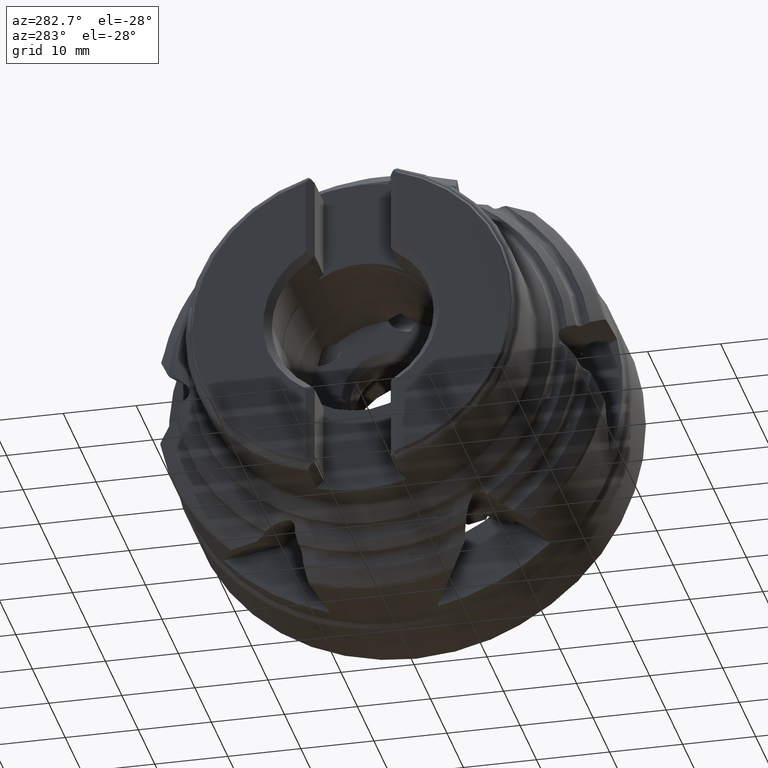
[diagram: clean part render]
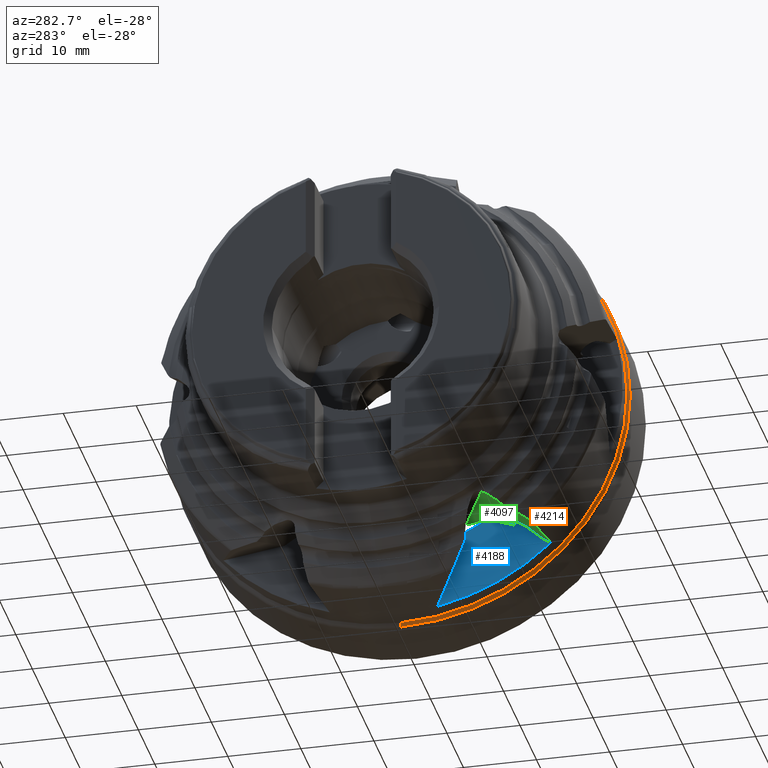
[diagram: same view with three faces highlighted in distinct colors, each labeled with its STEP entity id]
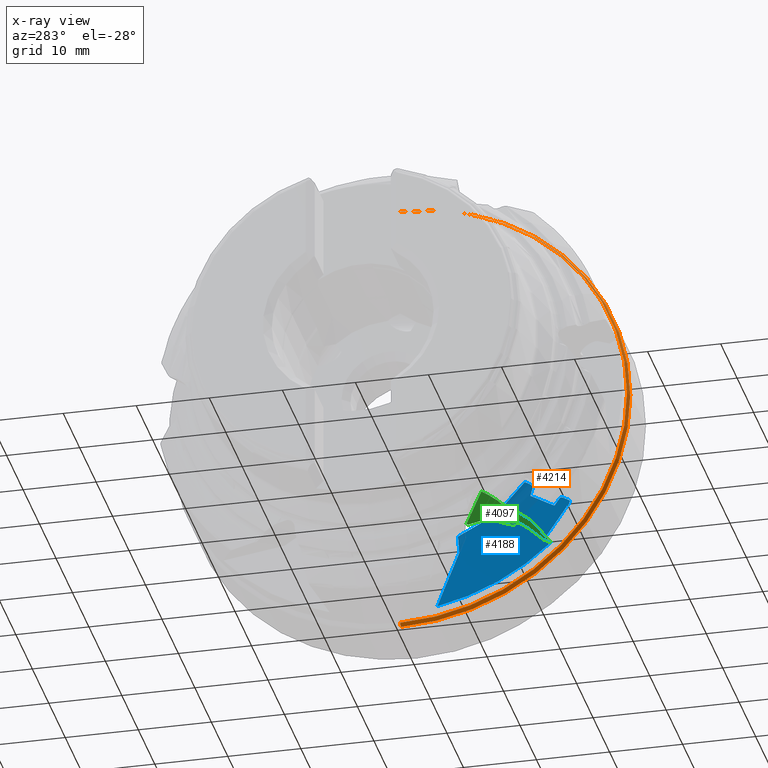
[diagram: x-ray of the same camera — body ghosted, the three highlighted faces saturated]
A machine part, auxiliary view with three faces highlighted in distinct colors.
The next image is the same camera in x-ray (body ghosted, the three faces saturated) — at least one of them is partly hidden behind the body in this view.
Their STEP definitions:

[orange] entity #4214 — the highlighted conical surface has half-angle 25.184 deg.
#141 = EDGE_CURVE ( 'NONE', #3351, #4012, #2933, .T. ) ;
#2302 = EDGE_LOOP ( 'NONE', ( #2568, #2569, #2570, #2571 ) ) ;
#2568 = ORIENTED_EDGE ( 'NONE', *, *, #8006, .F. ) ;
#2569 = ORIENTED_EDGE ( 'NONE', *, *, #6484, .T. ) ;
#2570 = ORIENTED_EDGE ( 'NONE', *, *, #8016, .T. ) ;
#2571 = ORIENTED_EDGE ( 'NONE', *, *, #141, .F. ) ;
#2933 = CIRCLE ( 'NONE', #7233, 31.37604880235647500 ) ;
#3318 = VERTEX_POINT ( 'NONE', #11670 ) ;
#3351 = VERTEX_POINT ( 'NONE', #11703 ) ;
#4012 = VERTEX_POINT ( 'NONE', #5379 ) ;
#4214 = ADVANCED_FACE ( 'NONE', ( #6132 ), #6131, .T. ) ;
#4224 = VERTEX_POINT ( 'NONE', #5761 ) ;
#5379 = CARTESIAN_POINT ( 'NONE',  ( -7.889555473977110500, 0.0000000000000000000, -31.37604880235647500 ) ) ;
#5743 = DIRECTION ( 'NONE',  ( 0.0000000000000000000, 0.0000000000000000000, -1.000000000000000000 ) ) ;
#5744 = DIRECTION ( 'NONE',  ( 1.000000000000000000, -0.0000000000000000000, -0.0000000000000000000 ) ) ;
#5745 = CARTESIAN_POINT ( 'NONE',  ( -7.889555473977110500, 0.0000000000000000000, 0.0000000000000000000 ) ) ;
#5761 = CARTESIAN_POINT ( 'NONE',  ( -8.529779502917302000, 3.805589928350399100E-015, 31.07499999999999600 ) ) ;
#6131 = CONICAL_SURFACE ( 'NONE', #7473, 31.37604880235647500, 0.4395444687587208300 ) ;
#6132 = FACE_OUTER_BOUND ( 'NONE', #2302, .T. ) ;
#6484 = EDGE_CURVE ( 'NONE', #4224, #3318, #6510, .T. ) ;
#6510 = CIRCLE ( 'NONE', #7660, 31.07499999999999600 ) ;
#7233 = AXIS2_PLACEMENT_3D ( 'NONE', #10598, #10611, #10613 ) ;
#7473 = AXIS2_PLACEMENT_3D ( 'NONE', #5745, #5744, #5743 ) ;
#7660 = AXIS2_PLACEMENT_3D ( 'NONE', #8857, #8859, #8860 ) ;
#8006 = EDGE_CURVE ( 'NONE', #4224, #3351, #13049, .T. ) ;
#8016 = EDGE_CURVE ( 'NONE', #3318, #4012, #13060, .T. ) ;
#8857 = CARTESIAN_POINT ( 'NONE',  ( -8.529779502917302000, 0.0000000000000000000, 0.0000000000000000000 ) ) ;
#8859 = DIRECTION ( 'NONE',  ( 1.000000000000000000, -0.0000000000000000000, -0.0000000000000000000 ) ) ;
#8860 = DIRECTION ( 'NONE',  ( 0.0000000000000000000, 0.0000000000000000000, -1.000000000000000000 ) ) ;
#10598 = CARTESIAN_POINT ( 'NONE',  ( -7.889555473977110500, 0.0000000000000000000, 0.0000000000000000000 ) ) ;
#10611 = DIRECTION ( 'NONE',  ( 1.000000000000000000, -0.0000000000000000000, -0.0000000000000000000 ) ) ;
#10613 = DIRECTION ( 'NONE',  ( 0.0000000000000000000, 0.0000000000000000000, -1.000000000000000000 ) ) ;
#11670 = CARTESIAN_POINT ( 'NONE',  ( -8.529779502917302000, 0.0000000000000000000, -31.07499999999999600 ) ) ;
#11703 = CARTESIAN_POINT ( 'NONE',  ( -7.889555473977110500, 3.842457773569700600E-015, 31.37604880235647500 ) ) ;
#12600 = CARTESIAN_POINT ( 'NONE',  ( -7.889555473977110500, 3.842457773569700600E-015, 31.37604880235647500 ) ) ;
#12601 = DIRECTION ( 'NONE',  ( 0.9049455980745598800, 5.211206192452562100E-017, 0.4255272782389834000 ) ) ;
#12638 = CARTESIAN_POINT ( 'NONE',  ( -7.889555473977110500, 0.0000000000000000000, -31.37604880235647500 ) ) ;
#12639 = DIRECTION ( 'NONE',  ( 0.9049455980745598800, 0.0000000000000000000, -0.4255272782389834000 ) ) ;
#13047 = VECTOR ( 'NONE', #12601, 1000.000000000000000 ) ;
#13049 = LINE ( 'NONE', #12600, #13047 ) ;
#13054 = VECTOR ( 'NONE', #12639, 1000.000000000000000 ) ;
#13060 = LINE ( 'NONE', #12638, #13054 ) ;

[blue] entity #4188 — the highlighted conical surface has half-angle 87.403 deg.
#94 = EDGE_CURVE ( 'NONE', #3928, #1272, #7702, .T. ) ;
#95 = EDGE_CURVE ( 'NONE', #1159, #4006, #7541, .T. ) ;
#96 = EDGE_CURVE ( 'NONE', #1311, #3940, #7559, .T. ) ;
#136 = EDGE_CURVE ( 'NONE', #1572, #3341, #3405, .T. ) ;
#1159 = VERTEX_POINT ( 'NONE', #11230 ) ;
#1272 = VERTEX_POINT ( 'NONE', #11370 ) ;
#1311 = VERTEX_POINT ( 'NONE', #11410 ) ;
#1572 = VERTEX_POINT ( 'NONE', #11450 ) ;
#1598 = VERTEX_POINT ( 'NONE', #11476 ) ;
#1845 = VERTEX_POINT ( 'NONE', #11509 ) ;
#1850 = VERTEX_POINT ( 'NONE', #11512 ) ;
#1852 = VERTEX_POINT ( 'NONE', #11514 ) ;
#1875 = VERTEX_POINT ( 'NONE', #11537 ) ;
#1881 = VERTEX_POINT ( 'NONE', #11543 ) ;
#1887 = VERTEX_POINT ( 'NONE', #11549 ) ;
#2284 = EDGE_LOOP ( 'NONE', ( #2402, #2403, #2404, #2405, #2406, #2407, #2408, #2409, #2410, #2411, #2412, #2413, #2414, #2415 ) ) ;
#2356 = EDGE_LOOP ( 'NONE', ( #2416, #2417, #2418 ) ) ;
#2402 = ORIENTED_EDGE ( 'NONE', *, *, #6397, .F. ) ;
#2403 = ORIENTED_EDGE ( 'NONE', *, *, #6806, .T. ) ;
#2404 = ORIENTED_EDGE ( 'NONE', *, *, #95, .F. ) ;
#2405 = ORIENTED_EDGE ( 'NONE', *, *, #7744, .T. ) ;
#2406 = ORIENTED_EDGE ( 'NONE', *, *, #94, .F. ) ;
#2407 = ORIENTED_EDGE ( 'NONE', *, *, #6913, .F. ) ;
#2408 = ORIENTED_EDGE ( 'NONE', *, *, #3742, .F. ) ;
#2409 = ORIENTED_EDGE ( 'NONE', *, *, #7746, .F. ) ;
#2410 = ORIENTED_EDGE ( 'NONE', *, *, #96, .F. ) ;
#2411 = ORIENTED_EDGE ( 'NONE', *, *, #7752, .T. ) ;
#2412 = ORIENTED_EDGE ( 'NONE', *, *, #7986, .T. ) ;
#2413 = ORIENTED_EDGE ( 'NONE', *, *, #136, .F. ) ;
#2414 = ORIENTED_EDGE ( 'NONE', *, *, #3727, .F. ) ;
#2415 = ORIENTED_EDGE ( 'NONE', *, *, #6477, .F. ) ;
#2416 = ORIENTED_EDGE ( 'NONE', *, *, #6392, .F. ) ;
#2417 = ORIENTED_EDGE ( 'NONE', *, *, #6794, .T. ) ;
#2418 = ORIENTED_EDGE ( 'NONE', *, *, #6815, .T. ) ;
#3224 = VERTEX_POINT ( 'NONE', #11576 ) ;
#3341 = VERTEX_POINT ( 'NONE', #11693 ) ;
#3405 = B_SPLINE_CURVE_WITH_KNOTS ( 'NONE', 3,
 ( #10577, #10584, #10586, #10588 ),
 .UNSPECIFIED., .F., .F.,
 ( 4, 4 ),
 ( 0.0000000000000000000, 0.002538169568664505500 ),
 .UNSPECIFIED. ) ;
#3466 = B_SPLINE_CURVE_WITH_KNOTS ( 'NONE', 3,
 ( #4915, #4917, #4918, #4919 ),
 .UNSPECIFIED., .F., .F.,
 ( 4, 4 ),
 ( 3.355557552788343800E-007, 0.008436232804282222500 ),
 .UNSPECIFIED. ) ;
#3471 = B_SPLINE_CURVE_WITH_KNOTS ( 'NONE', 3,
 ( #4957, #4960, #4961, #4962 ),
 .UNSPECIFIED., .F., .F.,
 ( 4, 4 ),
 ( 0.002025057353782216000, 0.005899572719423518700 ),
 .UNSPECIFIED. ) ;
#3727 = EDGE_CURVE ( 'NONE', #1845, #1572, #3466, .T. ) ;
#3742 = EDGE_CURVE ( 'NONE', #1875, #1881, #3471, .T. ) ;
#3856 = CARTESIAN_POINT ( 'NONE',  ( -10.88067626863887000, -22.34921932939456100, -16.10639613521508200 ) ) ;
#3928 = VERTEX_POINT ( 'NONE', #5321 ) ;
#3940 = VERTEX_POINT ( 'NONE', #5330 ) ;
#3960 = VERTEX_POINT ( 'NONE', #5346 ) ;
#4006 = VERTEX_POINT ( 'NONE', #5375 ) ;
#4025 = CARTESIAN_POINT ( 'NONE',  ( -10.94248528970887700, -23.70558305143109500, -16.54970909000637700 ) ) ;
#4126 = CARTESIAN_POINT ( 'NONE',  ( -10.94627032115090500, -23.76089875513012500, -16.61632566230232700 ) ) ;
#4144 = CARTESIAN_POINT ( 'NONE',  ( -10.95374089691669900, -23.79189454837388600, -16.85856547152785700 ) ) ;
#4163 = CARTESIAN_POINT ( 'NONE',  ( -10.68333498048717800, -18.64427529788395800, -13.80196755632228400 ) ) ;
#4188 = ADVANCED_FACE ( 'NONE', ( #6095, #6099 ), #6097, .F. ) ;
#4220 = CARTESIAN_POINT ( 'NONE',  ( -10.67769252315758900, -18.58297519318584200, -13.67553947286073200 ) ) ;
#4222 = CARTESIAN_POINT ( 'NONE',  ( -10.68196710265561600, -18.63094964838861500, -13.76925547884565800 ) ) ;
#4302 = CARTESIAN_POINT ( 'NONE',  ( -10.68578059649651200, -18.66024257039192900, -13.87095101293835400 ) ) ;
#4306 = CARTESIAN_POINT ( 'NONE',  ( -10.68685199214229300, -18.66273929978165900, -13.90718259150854600 ) ) ;
#4308 = CARTESIAN_POINT ( 'NONE',  ( -10.68745284611254800, -18.65368788609024300, -13.94142326658457000 ) ) ;
#4348 = CARTESIAN_POINT ( 'NONE',  ( -10.88054221163580900, -22.39559977107441600, -16.03698309103827300 ) ) ;
#4353 = CARTESIAN_POINT ( 'NONE',  ( -10.89114716224721000, -22.72567783115575000, -15.97562926365243500 ) ) ;
#4355 = CARTESIAN_POINT ( 'NONE',  ( -10.95193517013624400, -23.80526740166199000, -16.77052401634568600 ) ) ;
#4364 = CARTESIAN_POINT ( 'NONE',  ( -10.65903085845365300, -18.29114767477627600, -13.37768365207766400 ) ) ;
#4366 = CARTESIAN_POINT ( 'NONE',  ( -10.66543581823864900, -18.40224845016062000, -13.46502248549970400 ) ) ;
#4372 = CARTESIAN_POINT ( 'NONE',  ( -10.67462293755741100, -18.54045969031343000, -13.61908014962794200 ) ) ;
#4392 = CARTESIAN_POINT ( 'NONE',  ( -10.95385127776100600, -23.74723627261584000, -16.92541662280418900 ) ) ;
#4471 = CARTESIAN_POINT ( 'NONE',  ( -10.65277783110281200, -18.17156262529774900, -13.30762643417526000 ) ) ;
#4504 = CARTESIAN_POINT ( 'NONE',  ( -10.93885411875874200, -23.63628164341410800, -16.50910862765142900 ) ) ;
#4513 = CARTESIAN_POINT ( 'NONE',  ( -10.88216538222505700, -22.47315741442972800, -15.98982378516779500 ) ) ;
#4539 = CARTESIAN_POINT ( 'NONE',  ( -10.89490906650229500, -22.79749059893999100, -16.01770087597497700 ) ) ;
#4541 = CARTESIAN_POINT ( 'NONE',  ( -10.88748639069299200, -22.63816047818079000, -15.95983947619594400 ) ) ;
#4915 = CARTESIAN_POINT ( 'NONE',  ( -11.04062944478619600, -5.684444302778842900, -30.55065822480106500 ) ) ;
#4917 = CARTESIAN_POINT ( 'NONE',  ( -10.93112514378349300, -6.655774829584231600, -27.91403547299314500 ) ) ;
#4918 = CARTESIAN_POINT ( 'NONE',  ( -10.82584073566400400, -7.628806464875773400, -25.27788169789563700 ) ) ;
#4919 = CARTESIAN_POINT ( 'NONE',  ( -10.72986325296337500, -8.605589875448867300, -22.64276224556124000 ) ) ;
#4957 = CARTESIAN_POINT ( 'NONE',  ( -10.71022056121349500, -18.33402386993919800, -15.15981809428878600 ) ) ;
#4960 = CARTESIAN_POINT ( 'NONE',  ( -10.76797953451900000, -19.44730017377376500, -15.81194174305159600 ) ) ;
#4961 = CARTESIAN_POINT ( 'NONE',  ( -10.82585841075317000, -20.56056331327362600, -16.46407724953852600 ) ) ;
#4962 = CARTESIAN_POINT ( 'NONE',  ( -10.88381336914486900, -21.67381808353259800, -17.11622027085060100 ) ) ;
#5321 = CARTESIAN_POINT ( 'NONE',  ( -10.88067626863887000, -22.34921932939456100, -16.10639613521508200 ) ) ;
#5330 = CARTESIAN_POINT ( 'NONE',  ( -10.68745284611254800, -18.65368788609024300, -13.94142326658457000 ) ) ;
#5346 = CARTESIAN_POINT ( 'NONE',  ( -10.63776808860337700, -14.74375655347073900, -16.58679219002493700 ) ) ;
#5375 = CARTESIAN_POINT ( 'NONE',  ( -10.95385127776100600, -23.74723627261584000, -16.92541662280418900 ) ) ;
#5692 = CARTESIAN_POINT ( 'NONE',  ( -11.04062944478619600, 0.0000000000000000000, 0.0000000000000000000 ) ) ;
#5693 = DIRECTION ( 'NONE',  ( 0.0000000000000000000, 0.0000000000000000000, 1.000000000000000000 ) ) ;
#5694 = DIRECTION ( 'NONE',  ( -1.000000000000000000, 0.0000000000000000000, 0.0000000000000000000 ) ) ;
#6095 = FACE_OUTER_BOUND ( 'NONE', #2284, .T. ) ;
#6097 = CONICAL_SURFACE ( 'NONE', #7457, 31.07499999999999600, 1.525473692231814800 ) ;
#6099 = FACE_BOUND ( 'NONE', #2356, .T. ) ;
#6392 = EDGE_CURVE ( 'NONE', #1598, #1852, #8037, .T. ) ;
#6397 = EDGE_CURVE ( 'NONE', #1850, #1887, #8038, .T. ) ;
#6477 = EDGE_CURVE ( 'NONE', #1887, #1845, #6505, .T. ) ;
#6505 = CIRCLE ( 'NONE', #7653, 31.07499999999999600 ) ;
#6794 = EDGE_CURVE ( 'NONE', #1598, #3960, #8113, .T. ) ;
#6806 = EDGE_CURVE ( 'NONE', #1850, #4006, #8116, .T. ) ;
#6815 = EDGE_CURVE ( 'NONE', #3960, #1852, #8117, .T. ) ;
#6913 = EDGE_CURVE ( 'NONE', #1881, #3928, #8138, .T. ) ;
#7272 = CIRCLE ( 'NONE', #9489, 21.79979993145168000 ) ;
#7457 = AXIS2_PLACEMENT_3D ( 'NONE', #5692, #5694, #5693 ) ;
#7541 = B_SPLINE_CURVE_WITH_KNOTS ( 'NONE', 3,
 ( #4504, #4025, #4126, #4355, #4144, #4392 ),
 .UNSPECIFIED., .F., .F.,
 ( 4, 2, 4 ),
 ( 0.001512621793305964800, 0.001753318965563262200, 0.001994016137820559600 ),
 .UNSPECIFIED. ) ;
#7559 = B_SPLINE_CURVE_WITH_KNOTS ( 'NONE', 3,
 ( #4471, #4364, #4366, #4372, #4220, #4222, #4163, #4302, #4306, #4308 ),
 .UNSPECIFIED., .F., .F.,
 ( 4, 2, 2, 2, 4 ),
 ( 0.002192323967721373900, 0.002611683681384844400, 0.002821363538216574100, 0.002926203466632438900, 0.003031043395048303700 ),
 .UNSPECIFIED. ) ;
#7653 = AXIS2_PLACEMENT_3D ( 'NONE', #8839, #8841, #8842 ) ;
#7702 = B_SPLINE_CURVE_WITH_KNOTS ( 'NONE', 3,
 ( #3856, #4348, #4513, #4541, #4353, #4539 ),
 .UNSPECIFIED., .F., .F.,
 ( 4, 2, 4 ),
 ( 0.0009279824236362253200, 0.001177611161292674800, 0.001427239898949124400 ),
 .UNSPECIFIED. ) ;
#7744 = EDGE_CURVE ( 'NONE', #1159, #1272, #12197, .T. ) ;
#7746 = EDGE_CURVE ( 'NONE', #3940, #1875, #12198, .T. ) ;
#7752 = EDGE_CURVE ( 'NONE', #1311, #3224, #12199, .T. ) ;
#7986 = EDGE_CURVE ( 'NONE', #3224, #3341, #7272, .T. ) ;
#8037 = B_SPLINE_CURVE_WITH_KNOTS ( 'NONE', 3,
 ( #8670, #8673, #8674, #8675 ),
 .UNSPECIFIED., .F., .F.,
 ( 4, 4 ),
 ( 0.0009815495525941758900, 0.001796463148069496000 ),
 .UNSPECIFIED. ) ;
#8038 = B_SPLINE_CURVE_WITH_KNOTS ( 'NONE', 3,
 ( #8677, #8681, #8682, #8683 ),
 .UNSPECIFIED., .F., .F.,
 ( 4, 4 ),
 ( 0.008761597282434219500, 0.009883656947341619400 ),
 .UNSPECIFIED. ) ;
#8113 = B_SPLINE_CURVE_WITH_KNOTS ( 'NONE', 3,
 ( #9605, #9616, #9617, #9618 ),
 .UNSPECIFIED., .F., .F.,
 ( 4, 4 ),
 ( 0.0001005690843637054000, 0.002124929529140816000 ),
 .UNSPECIFIED. ) ;
#8116 = B_SPLINE_CURVE_WITH_KNOTS ( 'NONE', 3,
 ( #9633, #9637, #9638, #9639 ),
 .UNSPECIFIED., .F., .F.,
 ( 4, 4 ),
 ( 0.0002943658221442573400, 0.006575076552698924000 ),
 .UNSPECIFIED. ) ;
#8117 = B_SPLINE_CURVE_WITH_KNOTS ( 'NONE', 3,
 ( #9646, #9650, #9651, #9652 ),
 .UNSPECIFIED., .F., .F.,
 ( 4, 4 ),
 ( 0.0007182921708919450600, 0.002818026631380538500 ),
 .UNSPECIFIED. ) ;
#8138 = B_SPLINE_CURVE_WITH_KNOTS ( 'NONE', 3,
 ( #9839, #9862, #9863, #9864 ),
 .UNSPECIFIED., .F., .F.,
 ( 4, 4 ),
 ( 0.0006708818325245502900, 0.001885756830050400100 ),
 .UNSPECIFIED. ) ;
#8670 = CARTESIAN_POINT ( 'NONE',  ( -10.66054208370051800, -13.53900438542847000, -18.21359256104750200 ) ) ;
#8673 = CARTESIAN_POINT ( 'NONE',  ( -10.67186938257943000, -13.77324513162559000, -18.35066974217771500 ) ) ;
#8674 = CARTESIAN_POINT ( 'NONE',  ( -10.68323049049560900, -14.00748222945761000, -18.48775030354107000 ) ) ;
#8675 = CARTESIAN_POINT ( 'NONE',  ( -10.69462224938664500, -14.24171601971402300, -18.62483392939395400 ) ) ;
#8677 = CARTESIAN_POINT ( 'NONE',  ( -10.99198325676874100, -20.24719512029703900, -22.14035541545272400 ) ) ;
#8681 = CARTESIAN_POINT ( 'NONE',  ( -11.00817189756990900, -20.56965879530871900, -22.32915703937995400 ) ) ;
#8682 = CARTESIAN_POINT ( 'NONE',  ( -11.02438821890735100, -20.89211948328763000, -22.51796143081177300 ) ) ;
#8683 = CARTESIAN_POINT ( 'NONE',  ( -11.04062944478620000, -21.21457748379398100, -22.70676831220376400 ) ) ;
#8839 = CARTESIAN_POINT ( 'NONE',  ( -11.04062944478619600, 0.0000000000000000000, 0.0000000000000000000 ) ) ;
#8841 = DIRECTION ( 'NONE',  ( 1.000000000000000000, -0.0000000000000000000, -0.0000000000000000000 ) ) ;
#8842 = DIRECTION ( 'NONE',  ( 0.0000000000000000000, 0.0000000000000000000, -1.000000000000000000 ) ) ;
#9489 = AXIS2_PLACEMENT_3D ( 'NONE', #11183, #11184, #11186 ) ;
#9605 = CARTESIAN_POINT ( 'NONE',  ( -10.66054208370051800, -13.53900438542847000, -18.21359256104750200 ) ) ;
#9616 = CARTESIAN_POINT ( 'NONE',  ( -10.65264755751699800, -13.95887238240184300, -17.68459600264127800 ) ) ;
#9617 = CARTESIAN_POINT ( 'NONE',  ( -10.64487941226613700, -14.35733302851190100, -17.14006537257531800 ) ) ;
#9618 = CARTESIAN_POINT ( 'NONE',  ( -10.63776808860337700, -14.74375655347073900, -16.58679219002493700 ) ) ;
#9633 = CARTESIAN_POINT ( 'NONE',  ( -10.99198325676874100, -20.24719512029703900, -22.14035541545272400 ) ) ;
#9637 = CARTESIAN_POINT ( 'NONE',  ( -10.96970707093753500, -21.41749899249608200, -20.40454192871455100 ) ) ;
#9638 = CARTESIAN_POINT ( 'NONE',  ( -10.95672572559323000, -22.58428191422574100, -18.66629972721064600 ) ) ;
#9639 = CARTESIAN_POINT ( 'NONE',  ( -10.95385127776100600, -23.74723627261584000, -16.92541662280418900 ) ) ;
#9646 = CARTESIAN_POINT ( 'NONE',  ( -10.63776808860337700, -14.74375655347073900, -16.58679219002493700 ) ) ;
#9650 = CARTESIAN_POINT ( 'NONE',  ( -10.65569059303057000, -14.57473159281557100, -17.26575725324790500 ) ) ;
#9651 = CARTESIAN_POINT ( 'NONE',  ( -10.67470052803477300, -14.40748024063838900, -17.94512624766200700 ) ) ;
#9652 = CARTESIAN_POINT ( 'NONE',  ( -10.69462224938664500, -14.24171601971402300, -18.62483392939395400 ) ) ;
#9839 = CARTESIAN_POINT ( 'NONE',  ( -10.88381336914486900, -21.67381808353259800, -17.11622027085060100 ) ) ;
#9862 = CARTESIAN_POINT ( 'NONE',  ( -10.88237322790569900, -21.89910199934776400, -16.77971416744924600 ) ) ;
#9863 = CARTESIAN_POINT ( 'NONE',  ( -10.88132655438716500, -22.12423637784564400, -16.44310598508429800 ) ) ;
#9864 = CARTESIAN_POINT ( 'NONE',  ( -10.88067626863887000, -22.34921932939456100, -16.10639613521508200 ) ) ;
#9966 = CARTESIAN_POINT ( 'NONE',  ( -10.93885411875874200, -23.63628164341410800, -16.50910862765142900 ) ) ;
#9974 = CARTESIAN_POINT ( 'NONE',  ( -10.68745284611254800, -18.65368788609024300, -13.94142326658457000 ) ) ;
#9975 = CARTESIAN_POINT ( 'NONE',  ( -10.92420414357016000, -23.35668480759309100, -16.34530588349175800 ) ) ;
#9976 = CARTESIAN_POINT ( 'NONE',  ( -10.90955573629509000, -23.07708779898829800, -16.18150329402036600 ) ) ;
#9977 = CARTESIAN_POINT ( 'NONE',  ( -10.89490906650229500, -22.79749059893999100, -16.01770087597497700 ) ) ;
#9980 = CARTESIAN_POINT ( 'NONE',  ( -10.69457630267307400, -18.54637836425915900, -14.34736543152899400 ) ) ;
#9981 = CARTESIAN_POINT ( 'NONE',  ( -10.70217611286244400, -18.43984082499010300, -14.75350134056970200 ) ) ;
#9982 = CARTESIAN_POINT ( 'NONE',  ( -10.71022056121349500, -18.33402386993919800, -15.15981809428878600 ) ) ;
#9986 = CARTESIAN_POINT ( 'NONE',  ( -10.65277783110281200, -18.17156262529774900, -13.30762643417526000 ) ) ;
#9995 = CARTESIAN_POINT ( 'NONE',  ( -10.64183827099960800, -17.96235070876391000, -13.18506257783655900 ) ) ;
#9996 = CARTESIAN_POINT ( 'NONE',  ( -10.63090055311886700, -17.75313858936504400, -13.06249890333428900 ) ) ;
#9997 = CARTESIAN_POINT ( 'NONE',  ( -10.61996486731406700, -17.54392624623772400, -12.93993542943286100 ) ) ;
#10577 = CARTESIAN_POINT ( 'NONE',  ( -10.72986325296337500, -8.605589875448867300, -22.64276224556124000 ) ) ;
#10584 = CARTESIAN_POINT ( 'NONE',  ( -10.69185236693504300, -8.443336313480863000, -21.80784046138246500 ) ) ;
#10586 = CARTESIAN_POINT ( 'NONE',  ( -10.65505470156671400, -8.375090309999196200, -20.96534371389855900 ) ) ;
#10588 = CARTESIAN_POINT ( 'NONE',  ( -10.61996486731406500, -8.403329759683494200, -20.11505222467339800 ) ) ;
#11183 = CARTESIAN_POINT ( 'NONE',  ( -10.61996486731406700, 0.0000000000000000000, 0.0000000000000000000 ) ) ;
#11184 = DIRECTION ( 'NONE',  ( 1.000000000000000000, -0.0000000000000000000, -0.0000000000000000000 ) ) ;
#11186 = DIRECTION ( 'NONE',  ( 0.0000000000000000000, 0.0000000000000000000, -1.000000000000000000 ) ) ;
#11230 = CARTESIAN_POINT ( 'NONE',  ( -10.93885411875874200, -23.63628164341410800, -16.50910862765142900 ) ) ;
#11370 = CARTESIAN_POINT ( 'NONE',  ( -10.89490906650229500, -22.79749059893999100, -16.01770087597497700 ) ) ;
#11410 = CARTESIAN_POINT ( 'NONE',  ( -10.65277783110281200, -18.17156262529774900, -13.30762643417526000 ) ) ;
#11450 = CARTESIAN_POINT ( 'NONE',  ( -10.72986325296337500, -8.605589875448867300, -22.64276224556124000 ) ) ;
#11476 = CARTESIAN_POINT ( 'NONE',  ( -10.66054208370051800, -13.53900438542847000, -18.21359256104750200 ) ) ;
#11509 = CARTESIAN_POINT ( 'NONE',  ( -11.04062944478619600, -5.684444302778842900, -30.55065822480106500 ) ) ;
#11512 = CARTESIAN_POINT ( 'NONE',  ( -10.99198325676874100, -20.24719512029703900, -22.14035541545272400 ) ) ;
#11514 = CARTESIAN_POINT ( 'NONE',  ( -10.69462224938664500, -14.24171601971402300, -18.62483392939395400 ) ) ;
#11537 = CARTESIAN_POINT ( 'NONE',  ( -10.71022056121349500, -18.33402386993919800, -15.15981809428878600 ) ) ;
#11543 = CARTESIAN_POINT ( 'NONE',  ( -10.88381336914486900, -21.67381808353259800, -17.11622027085060100 ) ) ;
#11549 = CARTESIAN_POINT ( 'NONE',  ( -11.04062944478620000, -21.21457748379398100, -22.70676831220376400 ) ) ;
#11576 = CARTESIAN_POINT ( 'NONE',  ( -10.61996486731406700, -17.54392624623772400, -12.93993542943286100 ) ) ;
#11693 = CARTESIAN_POINT ( 'NONE',  ( -10.61996486731406500, -8.403329759683494200, -20.11505222467339800 ) ) ;
#12197 = B_SPLINE_CURVE_WITH_KNOTS ( 'NONE', 3,
 ( #9966, #9975, #9976, #9977 ),
 .UNSPECIFIED., .F., .F.,
 ( 4, 4 ),
 ( 0.001858778306026206300, 0.002831908904374794000 ),
 .UNSPECIFIED. ) ;
#12198 = B_SPLINE_CURVE_WITH_KNOTS ( 'NONE', 3,
 ( #9974, #9980, #9981, #9982 ),
 .UNSPECIFIED., .F., .F.,
 ( 4, 4 ),
 ( 0.001796021849224894300, 0.003055858897986249400 ),
 .UNSPECIFIED. ) ;
#12199 = B_SPLINE_CURVE_WITH_KNOTS ( 'NONE', 3,
 ( #9986, #9995, #9996, #9997 ),
 .UNSPECIFIED., .F., .F.,
 ( 4, 4 ),
 ( 0.008198690121130827400, 0.008926838998491566600 ),
 .UNSPECIFIED. ) ;

[green] entity #4097 — the highlighted planar face has unit normal (-0.1392, -0.4951, 0.8576).
#25 =( BOUNDED_CURVE ( )  B_SPLINE_CURVE ( 3, ( #8656, #8667, #8668, #8669 ),
 .UNSPECIFIED., .F., .T. ) 
 B_SPLINE_CURVE_WITH_KNOTS ( ( 4, 4 ),
 ( 1.866556812129674900, 1.902383036896534700 ),
 .UNSPECIFIED. ) 
 CURVE ( )  GEOMETRIC_REPRESENTATION_ITEM ( )  RATIONAL_B_SPLINE_CURVE ( ( 1.000000000000000000, 0.9998930429949854900, 0.9998930429949854900, 1.000000000000000000 ) ) 
 REPRESENTATION_ITEM ( '' )  );
#162 = EDGE_CURVE ( 'NONE', #3913, #3973, #2952, .T. ) ;
#190 = EDGE_CURVE ( 'NONE', #3255, #3256, #2984, .T. ) ;
#816 = EDGE_LOOP ( 'NONE', ( #2046, #2047, #2048, #2049, #2050, #2051, #2052, #2053, #2054, #2055, #2056, #2057, #2058, #2059, #2060, #2061, #2062, #2063, #2064, #2065, #2066 ) ) ;
#1149 = VERTEX_POINT ( 'NONE', #11202 ) ;
#1225 = VERTEX_POINT ( 'NONE', #11323 ) ;
#1567 = VERTEX_POINT ( 'NONE', #11442 ) ;
#1568 = VERTEX_POINT ( 'NONE', #11447 ) ;
#1598 = VERTEX_POINT ( 'NONE', #11476 ) ;
#1602 = VERTEX_POINT ( 'NONE', #11480 ) ;
#1850 = VERTEX_POINT ( 'NONE', #11512 ) ;
#1852 = VERTEX_POINT ( 'NONE', #11514 ) ;
#1861 = VERTEX_POINT ( 'NONE', #11523 ) ;
#1872 = VERTEX_POINT ( 'NONE', #11534 ) ;
#1886 = VERTEX_POINT ( 'NONE', #11548 ) ;
#1887 = VERTEX_POINT ( 'NONE', #11549 ) ;
#1894 = VERTEX_POINT ( 'NONE', #11556 ) ;
#2046 = ORIENTED_EDGE ( 'NONE', *, *, #6395, .F. ) ;
#2047 = ORIENTED_EDGE ( 'NONE', *, *, #6392, .T. ) ;
#2048 = ORIENTED_EDGE ( 'NONE', *, *, #6386, .F. ) ;
#2049 = ORIENTED_EDGE ( 'NONE', *, *, #162, .F. ) ;
#2050 = ORIENTED_EDGE ( 'NONE', *, *, #6390, .F. ) ;
#2051 = ORIENTED_EDGE ( 'NONE', *, *, #6399, .F. ) ;
#2052 = ORIENTED_EDGE ( 'NONE', *, *, #6397, .T. ) ;
#2053 = ORIENTED_EDGE ( 'NONE', *, *, #6388, .T. ) ;
#2054 = ORIENTED_EDGE ( 'NONE', *, *, #6401, .T. ) ;
#2055 = ORIENTED_EDGE ( 'NONE', *, *, #6403, .T. ) ;
#2056 = ORIENTED_EDGE ( 'NONE', *, *, #6405, .T. ) ;
#2057 = ORIENTED_EDGE ( 'NONE', *, *, #7994, .T. ) ;
#2058 = ORIENTED_EDGE ( 'NONE', *, *, #6409, .T. ) ;
#2059 = ORIENTED_EDGE ( 'NONE', *, *, #6411, .T. ) ;
#2060 = ORIENTED_EDGE ( 'NONE', *, *, #6408, .T. ) ;
#2061 = ORIENTED_EDGE ( 'NONE', *, *, #6410, .T. ) ;
#2062 = ORIENTED_EDGE ( 'NONE', *, *, #8025, .T. ) ;
#2063 = ORIENTED_EDGE ( 'NONE', *, *, #6415, .T. ) ;
#2064 = ORIENTED_EDGE ( 'NONE', *, *, #3644, .F. ) ;
#2065 = ORIENTED_EDGE ( 'NONE', *, *, #6413, .F. ) ;
#2066 = ORIENTED_EDGE ( 'NONE', *, *, #190, .F. ) ;
#2952 = CIRCLE ( 'NONE', #7265, 1.499999999999998000 ) ;
#2984 = CIRCLE ( 'NONE', #7279, 1.499999999999999600 ) ;
#3166 = LINE ( 'NONE', #4568, #3169 ) ;
#3169 = VECTOR ( 'NONE', #4569, 1000.000000000000000 ) ;
#3255 = VERTEX_POINT ( 'NONE', #11607 ) ;
#3256 = VERTEX_POINT ( 'NONE', #11608 ) ;
#3644 = EDGE_CURVE ( 'NONE', #1149, #1225, #3166, .T. ) ;
#3913 = VERTEX_POINT ( 'NONE', #5310 ) ;
#3946 = VERTEX_POINT ( 'NONE', #5336 ) ;
#3973 = VERTEX_POINT ( 'NONE', #5356 ) ;
#4007 = VERTEX_POINT ( 'NONE', #5376 ) ;
#4043 = VERTEX_POINT ( 'NONE', #5400 ) ;
#4097 = ADVANCED_FACE ( 'NONE', ( #5984 ), #5496, .F. ) ;
#4321 = VERTEX_POINT ( 'NONE', #8267 ) ;
#4568 = CARTESIAN_POINT ( 'NONE',  ( -0.9999999999999986700, 19.83561550560566300, 2.622990886485498100 ) ) ;
#4569 = DIRECTION ( 'NONE',  ( -1.060540212046013600E-016, 0.8660254037844387100, 0.4999999999999998900 ) ) ;
#5310 = CARTESIAN_POINT ( 'NONE',  ( -13.26291751530839100, -16.43087952902437400, -20.30553764631669000 ) ) ;
#5336 = CARTESIAN_POINT ( 'NONE',  ( -24.20151143756572100, -14.66759366831433600, -21.06264729585393200 ) ) ;
#5356 = CARTESIAN_POINT ( 'NONE',  ( -12.41160666018387500, -16.72521324572614900, -20.33731837706685800 ) ) ;
#5376 = CARTESIAN_POINT ( 'NONE',  ( -22.58210432144560900, -16.65745366680515400, -21.94869194081433500 ) ) ;
#5400 = CARTESIAN_POINT ( 'NONE',  ( -21.08210839350750000, -18.23376526219333400, -22.61535265932043600 ) ) ;
#5496 = PLANE ( 'NONE',  #7395 ) ;
#5499 = CARTESIAN_POINT ( 'NONE',  ( 12.80264766942824800, -15.29483477821839800, -15.41965480158116200 ) ) ;
#5505 = DIRECTION ( 'NONE',  ( -0.1391731009600686600, -0.4951340343707831300, 0.8575973040867553900 ) ) ;
#5506 = DIRECTION ( 'NONE',  ( 0.9902680687415699200, -0.06958655048003405100, 0.1205274409548760700 ) ) ;
#5984 = FACE_OUTER_BOUND ( 'NONE', #816, .T. ) ;
#6386 = EDGE_CURVE ( 'NONE', #3973, #1852, #6417, .T. ) ;
#6388 = EDGE_CURVE ( 'NONE', #1887, #1567, #25, .T. ) ;
#6390 = EDGE_CURVE ( 'NONE', #1886, #3913, #6427, .T. ) ;
#6392 = EDGE_CURVE ( 'NONE', #1598, #1852, #8037, .T. ) ;
#6395 = EDGE_CURVE ( 'NONE', #1598, #3255, #6429, .T. ) ;
#6397 = EDGE_CURVE ( 'NONE', #1850, #1887, #8038, .T. ) ;
#6399 = EDGE_CURVE ( 'NONE', #1850, #1886, #6423, .T. ) ;
#6401 = EDGE_CURVE ( 'NONE', #1567, #1861, #8039, .T. ) ;
#6403 = EDGE_CURVE ( 'NONE', #1861, #1602, #8040, .T. ) ;
#6405 = EDGE_CURVE ( 'NONE', #1602, #4043, #8041, .T. ) ;
#6408 = EDGE_CURVE ( 'NONE', #1894, #1568, #8042, .T. ) ;
#6409 = EDGE_CURVE ( 'NONE', #4007, #1872, #8043, .T. ) ;
#6410 = EDGE_CURVE ( 'NONE', #1568, #4321, #8044, .T. ) ;
#6411 = EDGE_CURVE ( 'NONE', #1872, #1894, #8045, .T. ) ;
#6413 = EDGE_CURVE ( 'NONE', #3256, #1149, #6431, .T. ) ;
#6415 = EDGE_CURVE ( 'NONE', #3946, #1225, #6435, .T. ) ;
#6417 = LINE ( 'NONE', #8664, #6419 ) ;
#6419 = VECTOR ( 'NONE', #8665, 1000.000000000000100 ) ;
#6423 = LINE ( 'NONE', #8685, #6425 ) ;
#6425 = VECTOR ( 'NONE', #8686, 1000.000000000000200 ) ;
#6427 = CIRCLE ( 'NONE', #7632, 1.499999999999998000 ) ;
#6429 = CIRCLE ( 'NONE', #7634, 1.499999999999999600 ) ;
#6431 = LINE ( 'NONE', #8715, #6433 ) ;
#6433 = VECTOR ( 'NONE', #8716, 1000.000000000000000 ) ;
#6435 = LINE ( 'NONE', #8717, #6437 ) ;
#6437 = VECTOR ( 'NONE', #8718, 1000.000000000000000 ) ;
#7265 = AXIS2_PLACEMENT_3D ( 'NONE', #10748, #10750, #10752 ) ;
#7279 = AXIS2_PLACEMENT_3D ( 'NONE', #10937, #10940, #10941 ) ;
#7395 = AXIS2_PLACEMENT_3D ( 'NONE', #5499, #5505, #5506 ) ;
#7632 = AXIS2_PLACEMENT_3D ( 'NONE', #8666, #8671, #8672 ) ;
#7634 = AXIS2_PLACEMENT_3D ( 'NONE', #8676, #8678, #8679 ) ;
#7994 = EDGE_CURVE ( 'NONE', #4043, #4007, #12260, .T. ) ;
#8025 = EDGE_CURVE ( 'NONE', #4321, #3946, #12271, .T. ) ;
#8037 = B_SPLINE_CURVE_WITH_KNOTS ( 'NONE', 3,
 ( #8670, #8673, #8674, #8675 ),
 .UNSPECIFIED., .F., .F.,
 ( 4, 4 ),
 ( 0.0009815495525941758900, 0.001796463148069496000 ),
 .UNSPECIFIED. ) ;
#8038 = B_SPLINE_CURVE_WITH_KNOTS ( 'NONE', 3,
 ( #8677, #8681, #8682, #8683 ),
 .UNSPECIFIED., .F., .F.,
 ( 4, 4 ),
 ( 0.008761597282434219500, 0.009883656947341619400 ),
 .UNSPECIFIED. ) ;
#8039 = B_SPLINE_CURVE_WITH_KNOTS ( 'NONE', 3,
 ( #8680, #8687, #8688, #8689 ),
 .UNSPECIFIED., .F., .F.,
 ( 4, 4 ),
 ( 1.991755085051286500E-007, 0.0007616711498809144300 ),
 .UNSPECIFIED. ) ;
#8040 = B_SPLINE_CURVE_WITH_KNOTS ( 'NONE', 3,
 ( #8684, #8691, #8692, #8693 ),
 .UNSPECIFIED., .F., .F.,
 ( 4, 4 ),
 ( 2.868299393206589600E-007, 0.002543531069544919700 ),
 .UNSPECIFIED. ) ;
#8041 = B_SPLINE_CURVE_WITH_KNOTS ( 'NONE', 3,
 ( #8690, #8695, #8696, #8697 ),
 .UNSPECIFIED., .F., .F.,
 ( 4, 4 ),
 ( 2.845870910680702300E-007, 0.0001777822130571769900 ),
 .UNSPECIFIED. ) ;
#8042 = B_SPLINE_CURVE_WITH_KNOTS ( 'NONE', 3,
 ( #8694, #8699, #8700, #8701 ),
 .UNSPECIFIED., .F., .F.,
 ( 4, 4 ),
 ( 2.916721980262421400E-007, 0.001615803337969916200 ),
 .UNSPECIFIED. ) ;
#8043 = B_SPLINE_CURVE_WITH_KNOTS ( 'NONE', 3,
 ( #8698, #8703, #8704, #8705 ),
 .UNSPECIFIED., .F., .F.,
 ( 4, 4 ),
 ( 0.005027265106061407400, 0.005158133880598896400 ),
 .UNSPECIFIED. ) ;
#8044 = B_SPLINE_CURVE_WITH_KNOTS ( 'NONE', 3,
 ( #8702, #8707, #8708, #8709 ),
 .UNSPECIFIED., .F., .F.,
 ( 4, 4 ),
 ( 2.891736780554838800E-007, 0.0001817408382907622500 ),
 .UNSPECIFIED. ) ;
#8045 = B_SPLINE_CURVE_WITH_KNOTS ( 'NONE', 3,
 ( #8706, #8711, #8712, #8713 ),
 .UNSPECIFIED., .F., .F.,
 ( 4, 4 ),
 ( 1.990449279971161100E-007, 0.0001711519141155483700 ),
 .UNSPECIFIED. ) ;
#8267 = CARTESIAN_POINT ( 'NONE',  ( -24.03428399164276600, -15.34185775015404300, -21.42479574405666300 ) ) ;
#8656 = CARTESIAN_POINT ( 'NONE',  ( -11.04062944478620000, -21.21457748379398100, -22.70676831220376400 ) ) ;
#8664 = CARTESIAN_POINT ( 'NONE',  ( -4.535763786078726800, -5.333360292754033300, -12.48211692654341200 ) ) ;
#8665 = DIRECTION ( 'NONE',  ( 0.4946542203593646300, 0.7154825497380429300, 0.4933578045404957700 ) ) ;
#8666 = CARTESIAN_POINT ( 'NONE',  ( -13.26291751530839100, -17.72991763470103200, -21.05553764631668700 ) ) ;
#8667 = CARTESIAN_POINT ( 'NONE',  ( -13.56662900066912900, -20.94339705242278500, -22.96012793583286900 ) ) ;
#8668 = CARTESIAN_POINT ( 'NONE',  ( -16.07843694213267900, -20.66772191132283600, -23.20858948582335300 ) ) ;
#8669 = CARTESIAN_POINT ( 'NONE',  ( -18.57524730281298300, -20.38764051665649300, -23.45207323806546300 ) ) ;
#8670 = CARTESIAN_POINT ( 'NONE',  ( -10.66054208370051800, -13.53900438542847000, -18.21359256104750200 ) ) ;
#8671 = DIRECTION ( 'NONE',  ( 0.1391731009600686600, 0.4951340343707831800, -0.8575973040867553900 ) ) ;
#8672 = DIRECTION ( 'NONE',  ( 0.0000000000000000000, -0.8660254037844393700, -0.4999999999999988300 ) ) ;
#8673 = CARTESIAN_POINT ( 'NONE',  ( -10.67186938257943000, -13.77324513162559000, -18.35066974217771500 ) ) ;
#8674 = CARTESIAN_POINT ( 'NONE',  ( -10.68323049049560900, -14.00748222945761000, -18.48775030354107000 ) ) ;
#8675 = CARTESIAN_POINT ( 'NONE',  ( -10.69462224938664500, -14.24171601971402300, -18.62483392939395400 ) ) ;
#8676 = CARTESIAN_POINT ( 'NONE',  ( -9.619043289393676600, -12.68596667994029700, -17.55207390335682800 ) ) ;
#8677 = CARTESIAN_POINT ( 'NONE',  ( -10.99198325676874100, -20.24719512029703900, -22.14035541545272400 ) ) ;
#8678 = DIRECTION ( 'NONE',  ( 0.1391731009600686600, 0.4951340343707831800, -0.8575973040867553900 ) ) ;
#8679 = DIRECTION ( 'NONE',  ( 1.156482317317871700E-015, -0.8660254037844397100, -0.4999999999999982800 ) ) ;
#8680 = CARTESIAN_POINT ( 'NONE',  ( -18.57524730281298300, -20.38764051665649300, -23.45207323806546300 ) ) ;
#8681 = CARTESIAN_POINT ( 'NONE',  ( -11.00817189756990900, -20.56965879530871900, -22.32915703937995400 ) ) ;
#8682 = CARTESIAN_POINT ( 'NONE',  ( -11.02438821890735100, -20.89211948328763000, -22.51796143081177300 ) ) ;
#8683 = CARTESIAN_POINT ( 'NONE',  ( -11.04062944478620000, -21.21457748379398100, -22.70676831220376400 ) ) ;
#8684 = CARTESIAN_POINT ( 'NONE',  ( -19.25000000000001100, -20.07147887480652700, -23.37903783590725100 ) ) ;
#8685 = CARTESIAN_POINT ( 'NONE',  ( 5.664387931313571700, -28.20024547812901300, -24.02901233230812000 ) ) ;
#8686 = DIRECTION ( 'NONE',  ( -0.8977216317810694500, 0.4286423053527028700, 0.1017921701028826300 ) ) ;
#8687 = CARTESIAN_POINT ( 'NONE',  ( -18.83011607100870300, -20.35905043982194200, -23.47692751013469300 ) ) ;
#8688 = CARTESIAN_POINT ( 'NONE',  ( -19.07053348427360000, -20.24236643583986600, -23.44857552652485900 ) ) ;
#8689 = CARTESIAN_POINT ( 'NONE',  ( -19.25000000000001100, -20.07147887480652700, -23.37903783590725100 ) ) ;
#8690 = CARTESIAN_POINT ( 'NONE',  ( -21.01705947588653000, -18.37793183585572600, -22.68803096341776600 ) ) ;
#8691 = CARTESIAN_POINT ( 'NONE',  ( -19.84111162539116800, -19.50862388454484600, -23.15000047392075900 ) ) ;
#8692 = CARTESIAN_POINT ( 'NONE',  ( -20.43026210283721500, -18.94419812774137300, -22.91973796930514600 ) ) ;
#8693 = CARTESIAN_POINT ( 'NONE',  ( -21.01705947588653000, -18.37793183585572600, -22.68803096341776600 ) ) ;
#8694 = CARTESIAN_POINT ( 'NONE',  ( -22.86511904234957300, -16.57986634983019400, -21.94982524085050100 ) ) ;
#8695 = CARTESIAN_POINT ( 'NONE',  ( -21.05860764598095600, -18.33783736833664700, -22.67162495593574400 ) ) ;
#8696 = CARTESIAN_POINT ( 'NONE',  ( -21.08197957245036800, -18.28510730084082100, -22.64497409374111900 ) ) ;
#8697 = CARTESIAN_POINT ( 'NONE',  ( -21.08210839350750000, -18.23376526219333400, -22.61535265932043600 ) ) ;
#8698 = CARTESIAN_POINT ( 'NONE',  ( -22.58210432144560900, -16.65745366680515400, -21.94869194081433500 ) ) ;
#8699 = CARTESIAN_POINT ( 'NONE',  ( -23.23436981147014900, -16.21745137208719400, -21.80050782244717000 ) ) ;
#8700 = CARTESIAN_POINT ( 'NONE',  ( -23.60246247201977700, -15.85414200478965600, -21.65048608714985800 ) ) ;
#8701 = CARTESIAN_POINT ( 'NONE',  ( -23.96923507402113500, -15.48983449019110600, -21.49967384873595900 ) ) ;
#8702 = CARTESIAN_POINT ( 'NONE',  ( -23.96923507402113500, -15.48983449019110600, -21.49967384873595900 ) ) ;
#8703 = CARTESIAN_POINT ( 'NONE',  ( -22.62539572256265800, -16.65219619470668300, -21.95268197803967800 ) ) ;
#8704 = CARTESIAN_POINT ( 'NONE',  ( -22.66893987548030500, -16.64866260320497600, -21.95770831540527700 ) ) ;
#8705 = CARTESIAN_POINT ( 'NONE',  ( -22.71274918744552100, -16.64693751528696100, -21.96382182349543700 ) ) ;
#8706 = CARTESIAN_POINT ( 'NONE',  ( -22.71274918744552100, -16.64693751528696100, -21.96382182349543700 ) ) ;
#8707 = CARTESIAN_POINT ( 'NONE',  ( -24.01103450369169300, -15.44831599548396500, -21.48248645382520600 ) ) ;
#8708 = CARTESIAN_POINT ( 'NONE',  ( -24.03415531325726200, -15.39438748876093900, -21.45510292052174600 ) ) ;
#8709 = CARTESIAN_POINT ( 'NONE',  ( -24.03428399164276600, -15.34185775015404300, -21.42479574405666300 ) ) ;
#8711 = CARTESIAN_POINT ( 'NONE',  ( -22.77000255577505100, -16.64468303810984300, -21.97181142467314200 ) ) ;
#8712 = CARTESIAN_POINT ( 'NONE',  ( -22.82550852445437800, -16.61874357411101900, -21.96584291981442800 ) ) ;
#8713 = CARTESIAN_POINT ( 'NONE',  ( -22.86511904234957300, -16.57986634983019400, -21.94982524085050100 ) ) ;
#8715 = CARTESIAN_POINT ( 'NONE',  ( 4.659175773376285100, -4.563759134465258600, -10.54560899901650100 ) ) ;
#8716 = DIRECTION ( 'NONE',  ( 0.8108622521461537100, 0.4401488974804122500, 0.3857089007156110900 ) ) ;
#8717 = CARTESIAN_POINT ( 'NONE',  ( -28.40394578069784300, -15.98434355321723500, -22.50485507331553900 ) ) ;
#8718 = DIRECTION ( 'NONE',  ( 0.9068635686480308600, 0.2841478062807619200, 0.3112209698024681600 ) ) ;
#10748 = CARTESIAN_POINT ( 'NONE',  ( -13.26291751530839100, -17.72991763470103200, -21.05553764631668700 ) ) ;
#10750 = DIRECTION ( 'NONE',  ( 0.1391731009600686600, 0.4951340343707831800, -0.8575973040867553900 ) ) ;
#10752 = DIRECTION ( 'NONE',  ( -5.782411586589364300E-015, -0.8660254037844393700, -0.4999999999999988300 ) ) ;
#10937 = CARTESIAN_POINT ( 'NONE',  ( -9.619043289393676600, -12.68596667994029700, -17.55207390335682800 ) ) ;
#10940 = DIRECTION ( 'NONE',  ( 0.1391731009600686600, 0.4951340343707831800, -0.8575973040867553900 ) ) ;
#10941 = DIRECTION ( 'NONE',  ( 0.0000000000000000000, -0.8660254037844397100, -0.4999999999999982800 ) ) ;
#11202 = CARTESIAN_POINT ( 'NONE',  ( -0.9999999999999940000, -7.635649545822645700, -13.23755138593618600 ) ) ;
#11248 = CARTESIAN_POINT ( 'NONE',  ( -21.08210839350750000, -18.23376526219333400, -22.61535265932043600 ) ) ;
#11274 = CARTESIAN_POINT ( 'NONE',  ( -21.08256128751658700, -18.05326292644583600, -22.51121308399439900 ) ) ;
#11276 = CARTESIAN_POINT ( 'NONE',  ( -21.12129285657380300, -17.86946320663820100, -22.41138172514352100 ) ) ;
#11278 = CARTESIAN_POINT ( 'NONE',  ( -21.26601682188746900, -17.52260497657947600, -22.23460921076488000 ) ) ;
#11280 = CARTESIAN_POINT ( 'NONE',  ( -21.37364921321724200, -17.35618098018290200, -22.15599113353267300 ) ) ;
#11282 = CARTESIAN_POINT ( 'NONE',  ( -21.64265635029452300, -17.06616472305263700, -22.03220534097862400 ) ) ;
#11284 = CARTESIAN_POINT ( 'NONE',  ( -21.80795176107617200, -16.93875989291509800, -21.98547269331242800 ) ) ;
#11286 = CARTESIAN_POINT ( 'NONE',  ( -22.17194366858990400, -16.74820643177304500, -21.93452614616574100 ) ) ;
#11288 = CARTESIAN_POINT ( 'NONE',  ( -22.37594329714060100, -16.68249064424559300, -21.92969070407601600 ) ) ;
#11323 = CARTESIAN_POINT ( 'NONE',  ( -0.9999999999999940000, -7.397857838909733800, -13.10026227993895600 ) ) ;
#11442 = CARTESIAN_POINT ( 'NONE',  ( -18.57524730281298300, -20.38764051665649300, -23.45207323806546300 ) ) ;
#11447 = CARTESIAN_POINT ( 'NONE',  ( -23.96923507402113500, -15.48983449019110600, -21.49967384873595900 ) ) ;
#11476 = CARTESIAN_POINT ( 'NONE',  ( -10.66054208370051800, -13.53900438542847000, -18.21359256104750200 ) ) ;
#11480 = CARTESIAN_POINT ( 'NONE',  ( -21.01705947588653000, -18.37793183585572600, -22.68803096341776600 ) ) ;
#11512 = CARTESIAN_POINT ( 'NONE',  ( -10.99198325676874100, -20.24719512029703900, -22.14035541545272400 ) ) ;
#11514 = CARTESIAN_POINT ( 'NONE',  ( -10.69462224938664500, -14.24171601971402300, -18.62483392939395400 ) ) ;
#11523 = CARTESIAN_POINT ( 'NONE',  ( -19.25000000000001100, -20.07147887480652700, -23.37903783590725100 ) ) ;
#11534 = CARTESIAN_POINT ( 'NONE',  ( -22.71274918744552100, -16.64693751528696100, -21.96382182349543700 ) ) ;
#11548 = CARTESIAN_POINT ( 'NONE',  ( -13.88992239531599700, -18.86349301360473200, -21.81175966450312500 ) ) ;
#11549 = CARTESIAN_POINT ( 'NONE',  ( -11.04062944478620000, -21.21457748379398100, -22.70676831220376400 ) ) ;
#11556 = CARTESIAN_POINT ( 'NONE',  ( -22.86511904234957300, -16.57986634983019400, -21.94982524085050100 ) ) ;
#11607 = CARTESIAN_POINT ( 'NONE',  ( -9.619043289393676600, -11.38692857426363700, -16.80207390335683100 ) ) ;
#11608 = CARTESIAN_POINT ( 'NONE',  ( -8.636428790390283400, -11.78082427048369500, -16.87002847601976500 ) ) ;
#12260 = B_SPLINE_CURVE_WITH_KNOTS ( 'NONE', 3,
 ( #11248, #11274, #11276, #11278, #11280, #11282, #11284, #11286, #11288, #12548 ),
 .UNSPECIFIED., .F., .F.,
 ( 4, 2, 2, 2, 4 ),
 ( 0.002534387544971133700, 0.003157606935243702200, 0.003780826325516270300, 0.004404045715788838500, 0.005027265106061407400 ),
 .UNSPECIFIED. ) ;
#12271 = B_SPLINE_CURVE_WITH_KNOTS ( 'NONE', 3,
 ( #12673, #12677, #12678, #12679 ),
 .UNSPECIFIED., .F., .F.,
 ( 4, 4 ),
 ( 0.002556888241247095900, 0.003344447754128646600 ),
 .UNSPECIFIED. ) ;
#12548 = CARTESIAN_POINT ( 'NONE',  ( -22.58210432144560900, -16.65745366680515400, -21.94869194081433500 ) ) ;
#12673 = CARTESIAN_POINT ( 'NONE',  ( -24.03428399164276600, -15.34185775015404300, -21.42479574405666300 ) ) ;
#12677 = CARTESIAN_POINT ( 'NONE',  ( -24.03484165280234200, -15.11420650152385600, -21.29345173306901600 ) ) ;
#12678 = CARTESIAN_POINT ( 'NONE',  ( -24.09326068584141800, -14.88192461226315700, -21.16882411303283000 ) ) ;
#12679 = CARTESIAN_POINT ( 'NONE',  ( -24.20151143756572100, -14.66759366831433600, -21.06264729585393200 ) ) ;